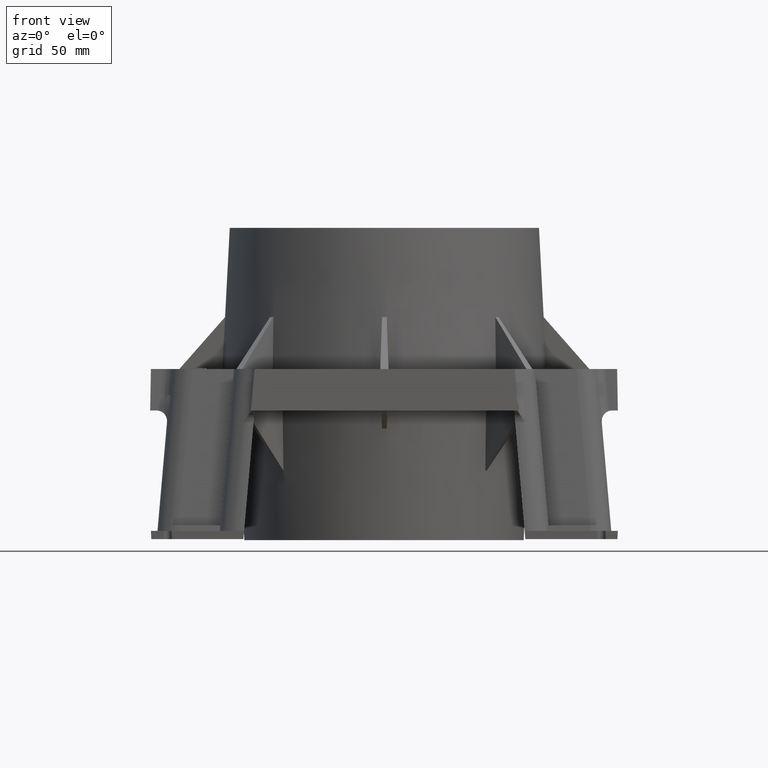
[diagram: clean part render]
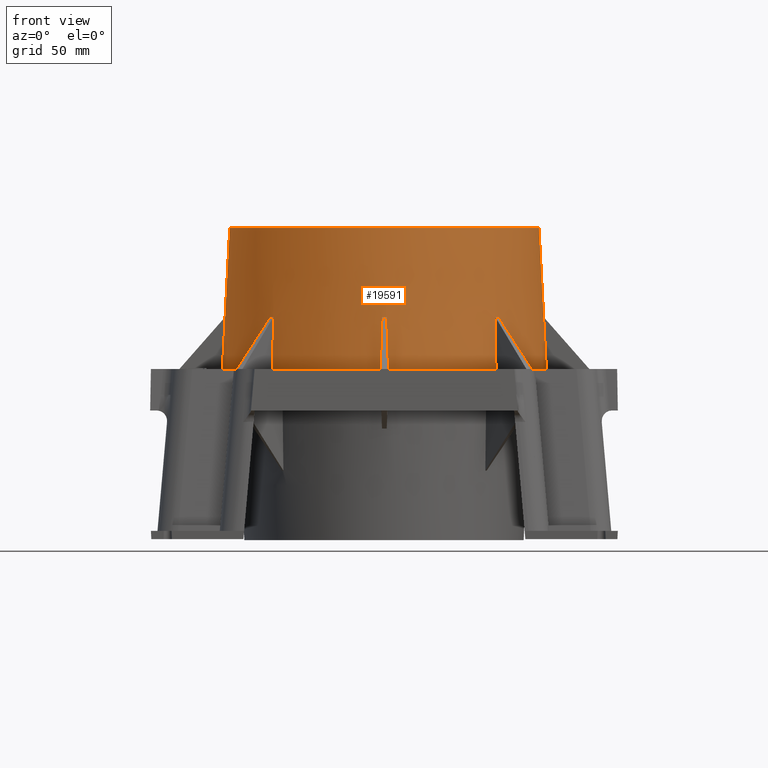
[diagram: same view with one face highlighted and labeled with its STEP entity id]
A machine part, front view. The second image highlights one B-rep face of the part: STEP entity #19591.
In plain terms, the highlighted conical surface has half-angle 3 deg.
Its self-contained STEP definition (entity closure, byte-faithful):
#19=CONICAL_SURFACE('',#20783,74.5,0.0523598775598299);
#290=(
BOUNDED_CURVE()
B_SPLINE_CURVE(2,(#28300,#28301,#28302),.UNSPECIFIED.,.F.,.F.)
B_SPLINE_CURVE_WITH_KNOTS((3,3),(0.314856212363098,2.81809618718847),
 .UNSPECIFIED.)
CURVE()
GEOMETRIC_REPRESENTATION_ITEM()
RATIONAL_B_SPLINE_CURVE((1.00000501507264,1.00002244350998,1.))
REPRESENTATION_ITEM('')
);
#291=(
BOUNDED_CURVE()
B_SPLINE_CURVE(2,(#28308,#28309,#28310),.UNSPECIFIED.,.F.,.F.)
B_SPLINE_CURVE_WITH_KNOTS((3,3),(0.,2.50323997482883),.UNSPECIFIED.)
CURVE()
GEOMETRIC_REPRESENTATION_ITEM()
RATIONAL_B_SPLINE_CURVE((1.,1.00002244351473,1.0000050150737))
REPRESENTATION_ITEM('')
);
#300=(
BOUNDED_CURVE()
B_SPLINE_CURVE(2,(#29154,#29155,#29156),.UNSPECIFIED.,.F.,.F.)
B_SPLINE_CURVE_WITH_KNOTS((3,3),(0.331955023728048,2.81809618718847),
 .UNSPECIFIED.)
CURVE()
GEOMETRIC_REPRESENTATION_ITEM()
RATIONAL_B_SPLINE_CURVE((1.00000525131125,1.00002229021881,1.))
REPRESENTATION_ITEM('')
);
#301=(
BOUNDED_CURVE()
B_SPLINE_CURVE(2,(#29164,#29165,#29166),.UNSPECIFIED.,.F.,.F.)
B_SPLINE_CURVE_WITH_KNOTS((3,3),(0.,2.50323997482643),.UNSPECIFIED.)
CURVE()
GEOMETRIC_REPRESENTATION_ITEM()
RATIONAL_B_SPLINE_CURVE((1.,1.0000224435222,1.00000501507537))
REPRESENTATION_ITEM('')
);
#302=(
BOUNDED_CURVE()
B_SPLINE_CURVE(2,(#29168,#29169,#29170),.UNSPECIFIED.,.F.,.F.)
B_SPLINE_CURVE_WITH_KNOTS((3,3),(0.314856212363483,2.81809618718847),
 .UNSPECIFIED.)
CURVE()
GEOMETRIC_REPRESENTATION_ITEM()
RATIONAL_B_SPLINE_CURVE((1.00000501507139,1.00002244350437,1.))
REPRESENTATION_ITEM('')
);
#303=(
BOUNDED_CURVE()
B_SPLINE_CURVE(2,(#29173,#29174,#29175),.UNSPECIFIED.,.F.,.F.)
B_SPLINE_CURVE_WITH_KNOTS((3,3),(0.314856212360859,2.81809618718847),
 .UNSPECIFIED.)
CURVE()
GEOMETRIC_REPRESENTATION_ITEM()
RATIONAL_B_SPLINE_CURVE((1.00000501507649,1.00002244352721,1.))
REPRESENTATION_ITEM('')
);
#304=(
BOUNDED_CURVE()
B_SPLINE_CURVE(2,(#29178,#29179,#29180),.UNSPECIFIED.,.F.,.F.)
B_SPLINE_CURVE_WITH_KNOTS((3,3),(0.,2.50323997482642),.UNSPECIFIED.)
CURVE()
GEOMETRIC_REPRESENTATION_ITEM()
RATIONAL_B_SPLINE_CURVE((1.,1.0000224435222,1.00000501507537))
REPRESENTATION_ITEM('')
);
#305=(
BOUNDED_CURVE()
B_SPLINE_CURVE(2,(#29183,#29184,#29185),.UNSPECIFIED.,.F.,.F.)
B_SPLINE_CURVE_WITH_KNOTS((3,3),(0.,2.50323997482654),.UNSPECIFIED.)
CURVE()
GEOMETRIC_REPRESENTATION_ITEM()
RATIONAL_B_SPLINE_CURVE((1.,1.00002244350844,1.0000050150723))
REPRESENTATION_ITEM('')
);
#306=(
BOUNDED_CURVE()
B_SPLINE_CURVE(2,(#29187,#29188,#29189),.UNSPECIFIED.,.F.,.F.)
B_SPLINE_CURVE_WITH_KNOTS((3,3),(0.281996595632091,0.40668389413674),
 .UNSPECIFIED.)
CURVE()
GEOMETRIC_REPRESENTATION_ITEM()
RATIONAL_B_SPLINE_CURVE((1.00052487787316,1.00057933576493,1.00057933576493))
REPRESENTATION_ITEM('')
);
#307=(
BOUNDED_CURVE()
B_SPLINE_CURVE(2,(#29192,#29193,#29194),.UNSPECIFIED.,.F.,.F.)
B_SPLINE_CURVE_WITH_KNOTS((3,3),(0.31485621236404,2.81809618718847),
 .UNSPECIFIED.)
CURVE()
GEOMETRIC_REPRESENTATION_ITEM()
RATIONAL_B_SPLINE_CURVE((1.00000501507355,1.00002244351405,1.))
REPRESENTATION_ITEM('')
);
#308=(
BOUNDED_CURVE()
B_SPLINE_CURVE(2,(#29196,#29197,#29198),.UNSPECIFIED.,.F.,.F.)
B_SPLINE_CURVE_WITH_KNOTS((3,3),(0.314856212361611,2.81809618718847),
 .UNSPECIFIED.)
CURVE()
GEOMETRIC_REPRESENTATION_ITEM()
RATIONAL_B_SPLINE_CURVE((1.00000501507391,1.00002244351566,1.))
REPRESENTATION_ITEM('')
);
#309=(
BOUNDED_CURVE()
B_SPLINE_CURVE(2,(#29201,#29202,#29203),.UNSPECIFIED.,.F.,.F.)
B_SPLINE_CURVE_WITH_KNOTS((3,3),(0.,2.50323997482997),.UNSPECIFIED.)
CURVE()
GEOMETRIC_REPRESENTATION_ITEM()
RATIONAL_B_SPLINE_CURVE((1.,1.00002244352253,1.00000501507544))
REPRESENTATION_ITEM('')
);
#310=(
BOUNDED_CURVE()
B_SPLINE_CURVE(2,(#29205,#29206,#29207),.UNSPECIFIED.,.F.,.F.)
B_SPLINE_CURVE_WITH_KNOTS((3,3),(0.331955023728047,2.81809618718847),
 .UNSPECIFIED.)
CURVE()
GEOMETRIC_REPRESENTATION_ITEM()
RATIONAL_B_SPLINE_CURVE((1.00000525131125,1.00002229021881,1.))
REPRESENTATION_ITEM('')
);
#311=(
BOUNDED_CURVE()
B_SPLINE_CURVE(2,(#29209,#29210,#29211),.UNSPECIFIED.,.F.,.F.)
B_SPLINE_CURVE_WITH_KNOTS((3,3),(0.281996595635076,0.406683894139861),
 .UNSPECIFIED.)
CURVE()
GEOMETRIC_REPRESENTATION_ITEM()
RATIONAL_B_SPLINE_CURVE((1.00052487787312,1.00057933576488,1.00057933576488))
REPRESENTATION_ITEM('')
);
#312=(
BOUNDED_CURVE()
B_SPLINE_CURVE(2,(#29214,#29215,#29216),.UNSPECIFIED.,.F.,.F.)
B_SPLINE_CURVE_WITH_KNOTS((3,3),(0.31485621236404,2.81809618718847),
 .UNSPECIFIED.)
CURVE()
GEOMETRIC_REPRESENTATION_ITEM()
RATIONAL_B_SPLINE_CURVE((1.00000501507355,1.00002244351405,1.))
REPRESENTATION_ITEM('')
);
#313=(
BOUNDED_CURVE()
B_SPLINE_CURVE(2,(#29218,#29219,#29220),.UNSPECIFIED.,.F.,.F.)
B_SPLINE_CURVE_WITH_KNOTS((3,3),(0.314856212361006,2.81809618718847),
 .UNSPECIFIED.)
CURVE()
GEOMETRIC_REPRESENTATION_ITEM()
RATIONAL_B_SPLINE_CURVE((1.00000501507364,1.00002244351444,1.))
REPRESENTATION_ITEM('')
);
#314=(
BOUNDED_CURVE()
B_SPLINE_CURVE(2,(#29223,#29224,#29225),.UNSPECIFIED.,.F.,.F.)
B_SPLINE_CURVE_WITH_KNOTS((3,3),(0.,2.50323997482541),.UNSPECIFIED.)
CURVE()
GEOMETRIC_REPRESENTATION_ITEM()
RATIONAL_B_SPLINE_CURVE((1.,1.00002244350705,1.00000501507199))
REPRESENTATION_ITEM('')
);
#315=(
BOUNDED_CURVE()
B_SPLINE_CURVE(2,(#29227,#29228,#29229),.UNSPECIFIED.,.F.,.F.)
B_SPLINE_CURVE_WITH_KNOTS((3,3),(0.314856212360859,2.81809618718847),
 .UNSPECIFIED.)
CURVE()
GEOMETRIC_REPRESENTATION_ITEM()
RATIONAL_B_SPLINE_CURVE((1.00000501507649,1.00002244352721,1.))
REPRESENTATION_ITEM('')
);
#398=ELLIPSE('',#20785,109.652429887668,72.3108788073653);
#399=ELLIPSE('',#20786,109.652429887668,72.3108788073652);
#400=ELLIPSE('',#20787,109.652429887668,72.3108788073653);
#401=ELLIPSE('',#20788,109.652429887668,72.3108788073653);
#402=ELLIPSE('',#20789,109.652429887668,72.3108788073653);
#403=ELLIPSE('',#20790,109.652429887668,72.3108788073653);
#404=ELLIPSE('',#20791,109.652429887668,72.3108788073653);
#405=ELLIPSE('',#20792,109.652429887668,72.3108788073653);
#406=ELLIPSE('',#20793,109.652429887668,72.3108788073653);
#478=CIRCLE('',#20673,78.0637289912468);
#479=CIRCLE('',#20674,78.0637289912468);
#480=CIRCLE('',#20675,78.0637289912468);
#481=CIRCLE('',#20676,78.0637289912468);
#482=CIRCLE('',#20677,78.0637289912468);
#483=CIRCLE('',#20678,78.0637289912468);
#484=CIRCLE('',#20679,78.0637289912468);
#485=CIRCLE('',#20680,78.0637289912468);
#487=CIRCLE('',#20784,74.5);
#692=FACE_OUTER_BOUND('',#1719,.T.);
#1719=EDGE_LOOP('',(#13585,#13586,#13587,#13588,#13589,#13590,#13591,#13592,
#13593,#13594,#13595,#13596,#13597,#13598,#13599,#13600,#13601,#13602,#13603,
#13604,#13605,#13606,#13607,#13608,#13609,#13610,#13611,#13612,#13613,#13614,
#13615,#13616,#13617,#13618,#13619,#13620,#13621,#13622));
#3444=LINE('',#29161,#5718);
#5718=VECTOR('',#23050,74.5);
#8108=VERTEX_POINT('',#28295);
#8110=VERTEX_POINT('',#28298);
#8112=VERTEX_POINT('',#28305);
#8113=VERTEX_POINT('',#28307);
#8338=VERTEX_POINT('',#28774);
#8339=VERTEX_POINT('',#28776);
#8342=VERTEX_POINT('',#28782);
#8343=VERTEX_POINT('',#28784);
#8346=VERTEX_POINT('',#28790);
#8347=VERTEX_POINT('',#28792);
#8350=VERTEX_POINT('',#28798);
#8351=VERTEX_POINT('',#28800);
#8354=VERTEX_POINT('',#28806);
#8355=VERTEX_POINT('',#28808);
#8358=VERTEX_POINT('',#28814);
#8359=VERTEX_POINT('',#28816);
#8361=VERTEX_POINT('',#28821);
#8364=VERTEX_POINT('',#28827);
#8416=VERTEX_POINT('',#29152);
#8417=VERTEX_POINT('',#29158);
#8418=VERTEX_POINT('',#29160);
#8419=VERTEX_POINT('',#29162);
#8420=VERTEX_POINT('',#29167);
#8421=VERTEX_POINT('',#29172);
#8422=VERTEX_POINT('',#29176);
#8423=VERTEX_POINT('',#29181);
#8424=VERTEX_POINT('',#29186);
#8425=VERTEX_POINT('',#29190);
#8426=VERTEX_POINT('',#29195);
#8427=VERTEX_POINT('',#29199);
#8428=VERTEX_POINT('',#29204);
#8429=VERTEX_POINT('',#29208);
#8430=VERTEX_POINT('',#29212);
#8431=VERTEX_POINT('',#29217);
#8432=VERTEX_POINT('',#29221);
#8433=VERTEX_POINT('',#29226);
#10027=EDGE_CURVE('',#8110,#8108,#290,.T.);
#10029=EDGE_CURVE('',#8113,#8112,#291,.F.);
#10267=EDGE_CURVE('',#8339,#8338,#478,.T.);
#10271=EDGE_CURVE('',#8343,#8342,#479,.T.);
#10275=EDGE_CURVE('',#8347,#8346,#480,.T.);
#10279=EDGE_CURVE('',#8351,#8350,#481,.T.);
#10283=EDGE_CURVE('',#8355,#8354,#482,.T.);
#10287=EDGE_CURVE('',#8359,#8358,#483,.T.);
#10290=EDGE_CURVE('',#8361,#8108,#484,.T.);
#10294=EDGE_CURVE('',#8112,#8364,#485,.T.);
#10429=EDGE_CURVE('',#8416,#8358,#300,.T.);
#10430=EDGE_CURVE('',#8417,#8417,#487,.T.);
#10431=EDGE_CURVE('',#8417,#8418,#3444,.T.);
#10432=EDGE_CURVE('',#8419,#8418,#398,.T.);
#10433=EDGE_CURVE('',#8339,#8419,#301,.T.);
#10434=EDGE_CURVE('',#8338,#8420,#302,.F.);
#10435=EDGE_CURVE('',#8420,#8113,#399,.T.);
#10436=EDGE_CURVE('',#8421,#8364,#303,.T.);
#10437=EDGE_CURVE('',#8422,#8421,#400,.T.);
#10438=EDGE_CURVE('',#8361,#8422,#304,.T.);
#10439=EDGE_CURVE('',#8423,#8110,#401,.T.);
#10440=EDGE_CURVE('',#8359,#8423,#305,.T.);
#10441=EDGE_CURVE('',#8424,#8416,#306,.F.);
#10442=EDGE_CURVE('',#8425,#8424,#402,.T.);
#10443=EDGE_CURVE('',#8355,#8425,#307,.F.);
#10444=EDGE_CURVE('',#8354,#8426,#308,.F.);
#10445=EDGE_CURVE('',#8427,#8426,#403,.T.);
#10446=EDGE_CURVE('',#8427,#8351,#309,.F.);
#10447=EDGE_CURVE('',#8428,#8350,#310,.T.);
#10448=EDGE_CURVE('',#8429,#8428,#311,.F.);
#10449=EDGE_CURVE('',#8430,#8429,#404,.T.);
#10450=EDGE_CURVE('',#8347,#8430,#312,.F.);
#10451=EDGE_CURVE('',#8431,#8346,#313,.T.);
#10452=EDGE_CURVE('',#8432,#8431,#405,.T.);
#10453=EDGE_CURVE('',#8343,#8432,#314,.T.);
#10454=EDGE_CURVE('',#8433,#8342,#315,.T.);
#10455=EDGE_CURVE('',#8418,#8433,#406,.T.);
#13585=ORIENTED_EDGE('',*,*,#10430,.T.);
#13586=ORIENTED_EDGE('',*,*,#10431,.T.);
#13587=ORIENTED_EDGE('',*,*,#10432,.F.);
#13588=ORIENTED_EDGE('',*,*,#10433,.F.);
#13589=ORIENTED_EDGE('',*,*,#10267,.T.);
#13590=ORIENTED_EDGE('',*,*,#10434,.T.);
#13591=ORIENTED_EDGE('',*,*,#10435,.T.);
#13592=ORIENTED_EDGE('',*,*,#10029,.T.);
#13593=ORIENTED_EDGE('',*,*,#10294,.T.);
#13594=ORIENTED_EDGE('',*,*,#10436,.F.);
#13595=ORIENTED_EDGE('',*,*,#10437,.F.);
#13596=ORIENTED_EDGE('',*,*,#10438,.F.);
#13597=ORIENTED_EDGE('',*,*,#10290,.T.);
#13598=ORIENTED_EDGE('',*,*,#10027,.F.);
#13599=ORIENTED_EDGE('',*,*,#10439,.F.);
#13600=ORIENTED_EDGE('',*,*,#10440,.F.);
#13601=ORIENTED_EDGE('',*,*,#10287,.T.);
#13602=ORIENTED_EDGE('',*,*,#10429,.F.);
#13603=ORIENTED_EDGE('',*,*,#10441,.F.);
#13604=ORIENTED_EDGE('',*,*,#10442,.F.);
#13605=ORIENTED_EDGE('',*,*,#10443,.F.);
#13606=ORIENTED_EDGE('',*,*,#10283,.T.);
#13607=ORIENTED_EDGE('',*,*,#10444,.T.);
#13608=ORIENTED_EDGE('',*,*,#10445,.F.);
#13609=ORIENTED_EDGE('',*,*,#10446,.T.);
#13610=ORIENTED_EDGE('',*,*,#10279,.T.);
#13611=ORIENTED_EDGE('',*,*,#10447,.F.);
#13612=ORIENTED_EDGE('',*,*,#10448,.F.);
#13613=ORIENTED_EDGE('',*,*,#10449,.F.);
#13614=ORIENTED_EDGE('',*,*,#10450,.F.);
#13615=ORIENTED_EDGE('',*,*,#10275,.T.);
#13616=ORIENTED_EDGE('',*,*,#10451,.F.);
#13617=ORIENTED_EDGE('',*,*,#10452,.F.);
#13618=ORIENTED_EDGE('',*,*,#10453,.F.);
#13619=ORIENTED_EDGE('',*,*,#10271,.T.);
#13620=ORIENTED_EDGE('',*,*,#10454,.F.);
#13621=ORIENTED_EDGE('',*,*,#10455,.F.);
#13622=ORIENTED_EDGE('',*,*,#10431,.F.);
#19591=ADVANCED_FACE('',(#692),#19,.T.);
#20673=AXIS2_PLACEMENT_3D('',#28777,#22720,#22721);
#20674=AXIS2_PLACEMENT_3D('',#28785,#22725,#22726);
#20675=AXIS2_PLACEMENT_3D('',#28793,#22730,#22731);
#20676=AXIS2_PLACEMENT_3D('',#28801,#22735,#22736);
#20677=AXIS2_PLACEMENT_3D('',#28809,#22740,#22741);
#20678=AXIS2_PLACEMENT_3D('',#28817,#22745,#22746);
#20679=AXIS2_PLACEMENT_3D('',#28822,#22749,#22750);
#20680=AXIS2_PLACEMENT_3D('',#28829,#22754,#22755);
#20783=AXIS2_PLACEMENT_3D('',#29157,#23046,#23047);
#20784=AXIS2_PLACEMENT_3D('',#29159,#23048,#23049);
#20785=AXIS2_PLACEMENT_3D('',#29163,#23051,#23052);
#20786=AXIS2_PLACEMENT_3D('',#29171,#23053,#23054);
#20787=AXIS2_PLACEMENT_3D('',#29177,#23055,#23056);
#20788=AXIS2_PLACEMENT_3D('',#29182,#23057,#23058);
#20789=AXIS2_PLACEMENT_3D('',#29191,#23059,#23060);
#20790=AXIS2_PLACEMENT_3D('',#29200,#23061,#23062);
#20791=AXIS2_PLACEMENT_3D('',#29213,#23063,#23064);
#20792=AXIS2_PLACEMENT_3D('',#29222,#23065,#23066);
#20793=AXIS2_PLACEMENT_3D('',#29230,#23067,#23068);
#22720=DIRECTION('center_axis',(0.,0.,1.));
#22721=DIRECTION('ref_axis',(-1.,0.,0.));
#22725=DIRECTION('center_axis',(0.,0.,1.));
#22726=DIRECTION('ref_axis',(-1.,0.,0.));
#22730=DIRECTION('center_axis',(0.,0.,1.));
#22731=DIRECTION('ref_axis',(-1.,0.,0.));
#22735=DIRECTION('center_axis',(0.,0.,1.));
#22736=DIRECTION('ref_axis',(-1.,0.,0.));
#22740=DIRECTION('center_axis',(0.,0.,1.));
#22741=DIRECTION('ref_axis',(-1.,0.,0.));
#22745=DIRECTION('center_axis',(0.,0.,1.));
#22746=DIRECTION('ref_axis',(-1.,0.,0.));
#22749=DIRECTION('center_axis',(0.,0.,1.));
#22750=DIRECTION('ref_axis',(-1.,0.,0.));
#22754=DIRECTION('center_axis',(0.,0.,1.));
#22755=DIRECTION('ref_axis',(-1.,0.,0.));
#23046=DIRECTION('center_axis',(0.,0.,-1.));
#23047=DIRECTION('ref_axis',(-1.,0.,0.));
#23048=DIRECTION('center_axis',(0.,0.,-1.));
#23049=DIRECTION('ref_axis',(-1.,0.,0.));
#23050=DIRECTION('',(0.0523359562429438,6.40930612932371E-18,-0.998629534754574));
#23051=DIRECTION('center_axis',(-0.750713516922755,-1.11022302462516E-16,
-0.660627894892025));
#23052=DIRECTION('ref_axis',(-0.660627894892025,-2.09383552707295E-15,0.750713516922755));
#23053=DIRECTION('center_axis',(0.530834618544482,0.530834618544483,0.660627894892025));
#23054=DIRECTION('ref_axis',(-0.467134464319144,-0.467134464319145,0.750713516922755));
#23055=DIRECTION('center_axis',(1.11022302462516E-16,-0.750713516922755,
-0.660627894892025));
#23056=DIRECTION('ref_axis',(-8.96425426049029E-16,-0.660627894892025,0.750713516922755));
#23057=DIRECTION('center_axis',(0.530834618544482,-0.530834618544482,-0.660627894892025));
#23058=DIRECTION('ref_axis',(0.467134464319144,-0.467134464319144,0.750713516922755));
#23059=DIRECTION('center_axis',(0.750713516922755,0.,-0.660627894892025));
#23060=DIRECTION('ref_axis',(0.660627894892025,-1.2322940911604E-16,0.750713516922755));
#23061=DIRECTION('center_axis',(0.530834618544482,0.530834618544482,-0.660627894892025));
#23062=DIRECTION('ref_axis',(0.467134464319144,0.467134464319144,0.750713516922755));
#23063=DIRECTION('center_axis',(0.,0.750713516922755,-0.660627894892025));
#23064=DIRECTION('ref_axis',(2.4645881823208E-16,0.660627894892025,0.750713516922755));
#23065=DIRECTION('center_axis',(-0.530834618544483,0.530834618544482,-0.660627894892025));
#23066=DIRECTION('ref_axis',(-0.467134464319145,0.467134464319144,0.750713516922755));
#23067=DIRECTION('center_axis',(-0.750713516922755,-1.11022302462516E-16,
-0.660627894892025));
#23068=DIRECTION('ref_axis',(-0.660627894892025,-2.09383552707295E-15,0.750713516922755));
#28295=CARTESIAN_POINT('',(-53.7670594567356,56.5954865814818,0.));
#28298=CARTESIAN_POINT('',(-53.4700782533919,55.0633762811016,25.0099918434416));
#28300=CARTESIAN_POINT('Ctrl Pts',(-53.4700782533919,55.0633762811016,25.0099918434416));
#28301=CARTESIAN_POINT('Ctrl Pts',(-53.6189671536924,55.8246693700261,12.6094874758219));
#28302=CARTESIAN_POINT('Ctrl Pts',(-53.7670594567356,56.5954865814818,0.));
#28305=CARTESIAN_POINT('',(53.7670594567356,56.5954865814818,0.));
#28307=CARTESIAN_POINT('',(53.4700782533917,55.0633762811014,25.0099918434419));
#28308=CARTESIAN_POINT('Ctrl Pts',(53.7670594567356,56.5954865814818,0.));
#28309=CARTESIAN_POINT('Ctrl Pts',(53.6189671536933,55.8246693700307,12.6094874757466));
#28310=CARTESIAN_POINT('Ctrl Pts',(53.4700782533919,55.0633762811016,25.0099918434419));
#28774=CARTESIAN_POINT('',(56.5954865814818,53.7670594567356,0.));
#28776=CARTESIAN_POINT('',(78.0381046926361,2.00000000000001,0.));
#28777=CARTESIAN_POINT('Origin',(0.,0.,0.));
#28782=CARTESIAN_POINT('',(78.0381046926361,-1.99999999999999,0.));
#28784=CARTESIAN_POINT('',(56.5954865814818,-53.7670594567356,0.));
#28785=CARTESIAN_POINT('Origin',(0.,0.,0.));
#28790=CARTESIAN_POINT('',(53.7670594567356,-56.5954865814818,0.));
#28792=CARTESIAN_POINT('',(2.00000000000002,-78.0381046926361,0.));
#28793=CARTESIAN_POINT('Origin',(0.,0.,0.));
#28798=CARTESIAN_POINT('',(-1.99999999999997,-78.0381046926361,0.));
#28800=CARTESIAN_POINT('',(-53.7670594567356,-56.5954865814818,0.));
#28801=CARTESIAN_POINT('Origin',(0.,0.,0.));
#28806=CARTESIAN_POINT('',(-56.5954865814818,-53.7670594567356,0.));
#28808=CARTESIAN_POINT('',(-78.0381046926361,-2.00000000000002,0.));
#28809=CARTESIAN_POINT('Origin',(0.,0.,0.));
#28814=CARTESIAN_POINT('',(-78.0381046926361,1.99999999999997,0.));
#28816=CARTESIAN_POINT('',(-56.5954865814818,53.7670594567356,0.));
#28817=CARTESIAN_POINT('Origin',(0.,0.,0.));
#28821=CARTESIAN_POINT('',(-2.00000000000001,78.0381046926361,0.));
#28822=CARTESIAN_POINT('Origin',(0.,0.,0.));
#28827=CARTESIAN_POINT('',(1.99999999999999,78.0381046926361,0.));
#28829=CARTESIAN_POINT('Origin',(0.,0.,0.));
#29152=CARTESIAN_POINT('',(-76.7535345091708,1.13254812341228,24.8405716487057));
#29154=CARTESIAN_POINT('Ctrl Pts',(-76.7535345091711,1.13254812341228,24.8405716487057));
#29155=CARTESIAN_POINT('Ctrl Pts',(-77.3927757910146,1.56267469776139,12.5233581219318));
#29156=CARTESIAN_POINT('Ctrl Pts',(-78.0381046926361,1.99999999999997,0.));
#29157=CARTESIAN_POINT('Origin',(0.,0.,68.));
#29158=CARTESIAN_POINT('',(74.5,9.12361865364778E-15,68.));
#29159=CARTESIAN_POINT('Origin',(0.,0.,68.));
#29160=CARTESIAN_POINT('',(76.7535345091708,9.39959703599002E-15,25.));
#29161=CARTESIAN_POINT('',(74.5,9.12361865364778E-15,68.));
#29162=CARTESIAN_POINT('',(76.7447416869419,1.12663183984468,25.009991843442));
#29163=CARTESIAN_POINT('Origin',(4.31408058268554,-8.88178419700125E-15,
107.317561280097));
#29164=CARTESIAN_POINT('Ctrl Pts',(78.0381046926361,2.00000000000001,0.));
#29165=CARTESIAN_POINT('Ctrl Pts',(77.3883375436312,1.55966699444385,12.6094874759337));
#29166=CARTESIAN_POINT('Ctrl Pts',(76.7447416869422,1.12663183984468,25.009991843442));
#29167=CARTESIAN_POINT('',(55.0633762811016,53.4700782533919,25.0099918434416));
#29168=CARTESIAN_POINT('Ctrl Pts',(55.0633762811016,53.4700782533919,25.0099918434416));
#29169=CARTESIAN_POINT('Ctrl Pts',(55.8246693700294,53.618967153693,12.6094874757675));
#29170=CARTESIAN_POINT('Ctrl Pts',(56.5954865814818,53.7670594567356,0.));
#29171=CARTESIAN_POINT('Origin',(3.05051563460212,3.05051563460212,107.317561280097));
#29172=CARTESIAN_POINT('',(1.12663183984467,76.7447416869422,25.0099918434416));
#29173=CARTESIAN_POINT('Ctrl Pts',(1.12663183984467,76.7447416869422,25.0099918434416));
#29174=CARTESIAN_POINT('Ctrl Pts',(1.55966699444334,77.3883375436305,12.6094874759476));
#29175=CARTESIAN_POINT('Ctrl Pts',(1.99999999999999,78.0381046926361,0.));
#29176=CARTESIAN_POINT('',(-1.12663183984468,76.7447416869419,25.0099918434419));
#29177=CARTESIAN_POINT('Origin',(-8.88178419700125E-15,4.31408058268554,
107.317561280097));
#29178=CARTESIAN_POINT('Ctrl Pts',(-2.00000000000001,78.0381046926361,0.));
#29179=CARTESIAN_POINT('Ctrl Pts',(-1.55966699444385,77.3883375436312,12.6094874759337));
#29180=CARTESIAN_POINT('Ctrl Pts',(-1.12663183984468,76.7447416869422,25.0099918434419));
#29181=CARTESIAN_POINT('',(-55.0633762811014,53.4700782533917,25.0099918434419));
#29182=CARTESIAN_POINT('Origin',(-3.05051563460215,3.05051563460216,107.317561280097));
#29183=CARTESIAN_POINT('Ctrl Pts',(-56.5954865814818,53.7670594567356,0.));
#29184=CARTESIAN_POINT('Ctrl Pts',(-55.8246693700299,53.6189671536931,12.6094874757586));
#29185=CARTESIAN_POINT('Ctrl Pts',(-55.0633762811016,53.4700782533919,25.0099918434419));
#29186=CARTESIAN_POINT('',(-76.7535345091707,7.63611191335415E-15,25.0000000000001));
#29187=CARTESIAN_POINT('Ctrl Pts',(-76.7535345091708,1.13254812341253,24.8405716487056));
#29188=CARTESIAN_POINT('Ctrl Pts',(-76.7535345091708,0.566243241469966,
24.9999999999999));
#29189=CARTESIAN_POINT('Ctrl Pts',(-76.7535345091708,3.88353071794893E-15,
24.9999999999999));
#29190=CARTESIAN_POINT('',(-76.7447416869419,-1.12663183984469,25.009991843442));
#29191=CARTESIAN_POINT('Origin',(-4.31408058268554,0.,107.317561280097));
#29192=CARTESIAN_POINT('Ctrl Pts',(-76.7447416869421,-1.12663183984469,
25.009991843442));
#29193=CARTESIAN_POINT('Ctrl Pts',(-77.3883375436324,-1.55966699444465,
12.609487475911));
#29194=CARTESIAN_POINT('Ctrl Pts',(-78.0381046926361,-2.00000000000002,
0.));
#29195=CARTESIAN_POINT('',(-55.0633762811016,-53.4700782533919,25.0099918434416));
#29196=CARTESIAN_POINT('Ctrl Pts',(-55.0633762811016,-53.4700782533919,
25.0099918434416));
#29197=CARTESIAN_POINT('Ctrl Pts',(-55.8246693700253,-53.6189671536922,
12.6094874758339));
#29198=CARTESIAN_POINT('Ctrl Pts',(-56.5954865814818,-53.7670594567356,
0.));
#29199=CARTESIAN_POINT('',(-53.4700782533917,-55.0633762811014,25.0099918434419));
#29200=CARTESIAN_POINT('Origin',(-3.05051563460215,-3.05051563460215,107.317561280097));
#29201=CARTESIAN_POINT('Ctrl Pts',(-53.7670594567356,-56.5954865814818,
0.));
#29202=CARTESIAN_POINT('Ctrl Pts',(-53.6189671536926,-55.8246693700275,
12.6094874757982));
#29203=CARTESIAN_POINT('Ctrl Pts',(-53.4700782533919,-55.0633762811016,
25.0099918434419));
#29204=CARTESIAN_POINT('',(-1.13254812341228,-76.7535345091708,24.8405716487057));
#29205=CARTESIAN_POINT('Ctrl Pts',(-1.13254812341228,-76.7535345091711,
24.8405716487057));
#29206=CARTESIAN_POINT('Ctrl Pts',(-1.56267469776139,-77.3927757910146,
12.5233581219318));
#29207=CARTESIAN_POINT('Ctrl Pts',(-1.99999999999997,-78.0381046926361,
0.));
#29208=CARTESIAN_POINT('',(-1.52722238267083E-14,-76.7535345091707,25.0000000000001));
#29209=CARTESIAN_POINT('Ctrl Pts',(-1.13254812341253,-76.7535345091708,
24.8405716487056));
#29210=CARTESIAN_POINT('Ctrl Pts',(-0.566243241469973,-76.7535345091708,
24.9999999999999));
#29211=CARTESIAN_POINT('Ctrl Pts',(-9.98622184615487E-15,-76.7535345091708,
24.9999999999999));
#29212=CARTESIAN_POINT('',(1.12663183984469,-76.7447416869419,25.009991843442));
#29213=CARTESIAN_POINT('Origin',(0.,-4.31408058268554,107.317561280097));
#29214=CARTESIAN_POINT('Ctrl Pts',(1.12663183984469,-76.7447416869421,25.009991843442));
#29215=CARTESIAN_POINT('Ctrl Pts',(1.55966699444465,-77.3883375436324,12.609487475911));
#29216=CARTESIAN_POINT('Ctrl Pts',(2.00000000000002,-78.0381046926361,0.));
#29217=CARTESIAN_POINT('',(53.4700782533919,-55.0633762811016,25.0099918434416));
#29218=CARTESIAN_POINT('Ctrl Pts',(53.4700782533919,-55.0633762811016,25.0099918434416));
#29219=CARTESIAN_POINT('Ctrl Pts',(53.6189671536927,-55.8246693700277,12.6094874757949));
#29220=CARTESIAN_POINT('Ctrl Pts',(53.7670594567356,-56.5954865814818,0.));
#29221=CARTESIAN_POINT('',(55.0633762811014,-53.4700782533917,25.0099918434419));
#29222=CARTESIAN_POINT('Origin',(3.05051563460215,-3.05051563460216,107.317561280097));
#29223=CARTESIAN_POINT('Ctrl Pts',(56.5954865814818,-53.7670594567356,0.));
#29224=CARTESIAN_POINT('Ctrl Pts',(55.8246693700283,-53.6189671536928,12.6094874757856));
#29225=CARTESIAN_POINT('Ctrl Pts',(55.0633762811016,-53.4700782533918,25.0099918434419));
#29226=CARTESIAN_POINT('',(76.7447416869422,-1.12663183984467,25.0099918434416));
#29227=CARTESIAN_POINT('Ctrl Pts',(76.7447416869422,-1.12663183984467,25.0099918434416));
#29228=CARTESIAN_POINT('Ctrl Pts',(77.3883375436305,-1.55966699444334,12.6094874759476));
#29229=CARTESIAN_POINT('Ctrl Pts',(78.0381046926361,-1.99999999999999,0.));
#29230=CARTESIAN_POINT('Origin',(4.31408058268554,-8.88178419700125E-15,
107.317561280097));